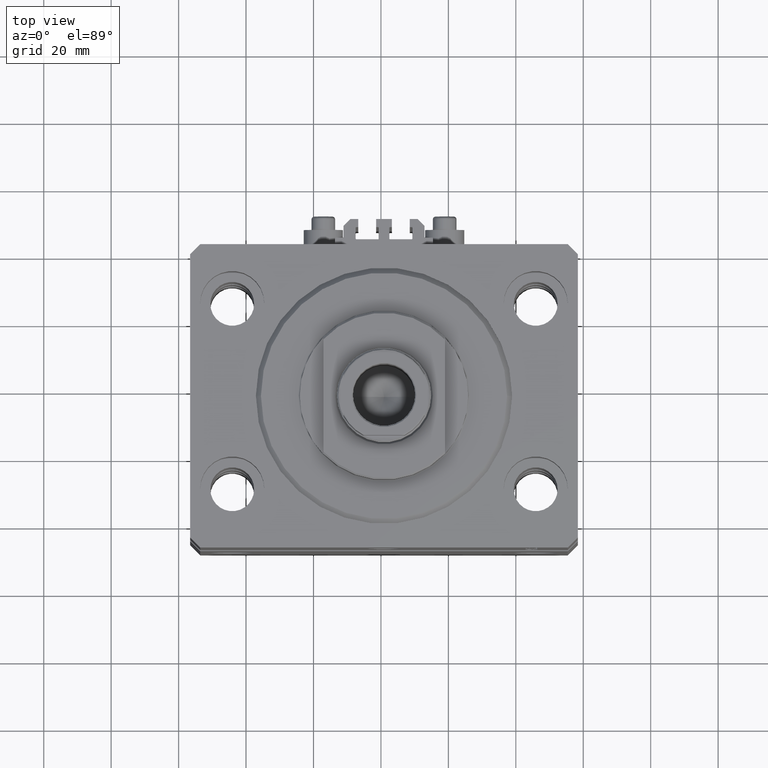
[diagram: clean part render]
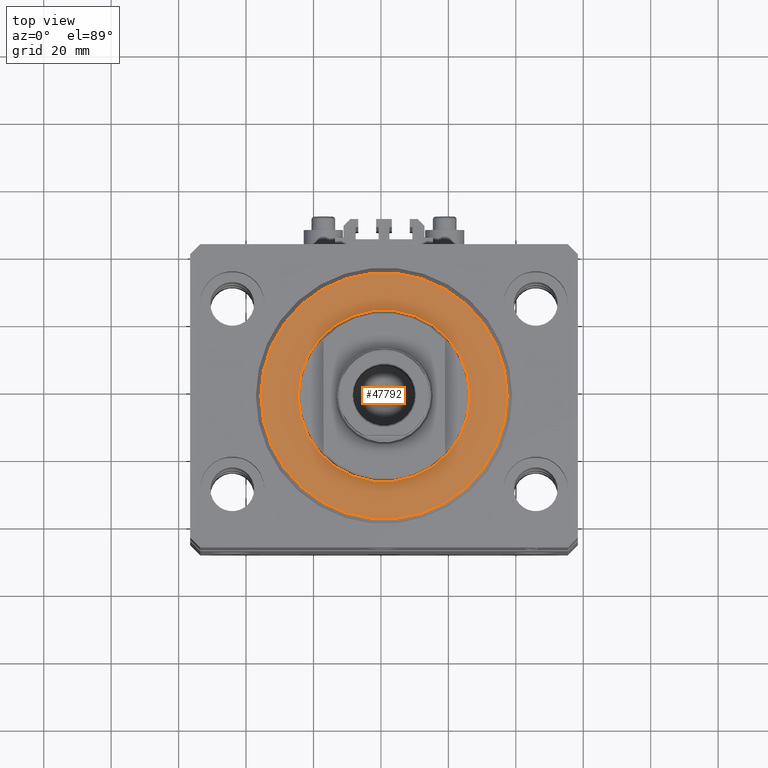
[diagram: same view with one face highlighted and labeled with its STEP entity id]
A machine part, top view. The second image highlights one B-rep face of the part: STEP entity #47792.
In plain terms, the highlighted planar face has unit normal (0, 0, -1).
Its self-contained STEP definition (entity closure, byte-faithful):
#124 = CARTESIAN_POINT ( 'NONE',  ( 0.000000000000000000, 0.000000000000000000, 0.000000000000000000 ) ) ;
#1172 = CARTESIAN_POINT ( 'NONE',  ( 0.000000000000000000, 0.000000000000000000, 0.000000000000000000 ) ) ;
#7576 = DIRECTION ( 'NONE',  ( -0.000000000000000000, -0.000000000000000000, -1.000000000000000000 ) ) ;
#7771 = CIRCLE ( 'NONE', #37145, 25.50000000000000355 ) ;
#8542 = DIRECTION ( 'NONE',  ( 1.000000000000000000, 0.000000000000000000, 0.000000000000000000 ) ) ;
#8633 = FACE_BOUND ( 'NONE', #11135, .T. ) ;
#8792 = DIRECTION ( 'NONE',  ( 0.000000000000000000, 0.000000000000000000, 1.000000000000000000 ) ) ;
#8881 = EDGE_CURVE ( 'NONE', #11720, #24761, #7771, .T. ) ;
#11135 = EDGE_LOOP ( 'NONE', ( #48294, #32107 ) ) ;
#11173 = CIRCLE ( 'NONE', #46942, 25.50000000000000355 ) ;
#11720 = VERTEX_POINT ( 'NONE', #40643 ) ;
#12615 = DIRECTION ( 'NONE',  ( 1.000000000000000000, 0.000000000000000000, 0.000000000000000000 ) ) ;
#15391 = EDGE_CURVE ( 'NONE', #28963, #43365, #19765, .T. ) ;
#16332 = DIRECTION ( 'NONE',  ( 0.000000000000000000, 0.000000000000000000, 1.000000000000000000 ) ) ;
#16346 = CARTESIAN_POINT ( 'NONE',  ( 0.000000000000000000, 0.000000000000000000, 0.000000000000000000 ) ) ;
#16664 = EDGE_LOOP ( 'NONE', ( #30342, #46830 ) ) ;
#17321 = DIRECTION ( 'NONE',  ( 0.000000000000000000, 0.000000000000000000, 1.000000000000000000 ) ) ;
#17835 = CARTESIAN_POINT ( 'NONE',  ( -25.50000000000000355, 3.122849337825751011E-15, 2.168404344971008868E-16 ) ) ;
#18799 = CIRCLE ( 'NONE', #46622, 36.50000000000000000 ) ;
#19119 = CARTESIAN_POINT ( 'NONE',  ( -36.50000000000000000, 4.561809326823889791E-15, 0.000000000000000000 ) ) ;
#19765 = CIRCLE ( 'NONE', #23745, 36.50000000000000000 ) ;
#23745 = AXIS2_PLACEMENT_3D ( 'NONE', #124, #7576, #33953 ) ;
#24761 = VERTEX_POINT ( 'NONE', #17835 ) ;
#25043 = CARTESIAN_POINT ( 'NONE',  ( 0.000000000000000000, 0.000000000000000000, 0.000000000000000000 ) ) ;
#27091 = AXIS2_PLACEMENT_3D ( 'NONE', #1172, #16332, #27789 ) ;
#27789 = DIRECTION ( 'NONE',  ( 1.000000000000000000, 0.000000000000000000, -0.000000000000000000 ) ) ;
#28963 = VERTEX_POINT ( 'NONE', #19119 ) ;
#30342 = ORIENTED_EDGE ( 'NONE', *, *, #37943, .T. ) ;
#32107 = ORIENTED_EDGE ( 'NONE', *, *, #47910, .T. ) ;
#33953 = DIRECTION ( 'NONE',  ( 1.000000000000000000, 0.000000000000000000, 0.000000000000000000 ) ) ;
#35248 = PLANE ( 'NONE',  #27091 ) ;
#35742 = DIRECTION ( 'NONE',  ( 1.000000000000000000, 0.000000000000000000, 0.000000000000000000 ) ) ;
#37145 = AXIS2_PLACEMENT_3D ( 'NONE', #38649, #8792, #8542 ) ;
#37803 = CARTESIAN_POINT ( 'NONE',  ( 36.50000000000000000, 0.000000000000000000, 0.000000000000000000 ) ) ;
#37943 = EDGE_CURVE ( 'NONE', #43365, #28963, #18799, .T. ) ;
#38649 = CARTESIAN_POINT ( 'NONE',  ( 0.000000000000000000, 0.000000000000000000, 0.000000000000000000 ) ) ;
#38992 = FACE_OUTER_BOUND ( 'NONE', #16664, .T. ) ;
#40643 = CARTESIAN_POINT ( 'NONE',  ( 25.50000000000000355, 0.000000000000000000, 2.168404344971008868E-16 ) ) ;
#43365 = VERTEX_POINT ( 'NONE', #37803 ) ;
#46622 = AXIS2_PLACEMENT_3D ( 'NONE', #16346, #46712, #12615 ) ;
#46712 = DIRECTION ( 'NONE',  ( -0.000000000000000000, -0.000000000000000000, -1.000000000000000000 ) ) ;
#46830 = ORIENTED_EDGE ( 'NONE', *, *, #15391, .T. ) ;
#46942 = AXIS2_PLACEMENT_3D ( 'NONE', #25043, #17321, #35742 ) ;
#47792 = ADVANCED_FACE ( 'NONE', ( #8633, #38992 ), #35248, .F. ) ;
#47910 = EDGE_CURVE ( 'NONE', #24761, #11720, #11173, .T. ) ;
#48294 = ORIENTED_EDGE ( 'NONE', *, *, #8881, .T. ) ;